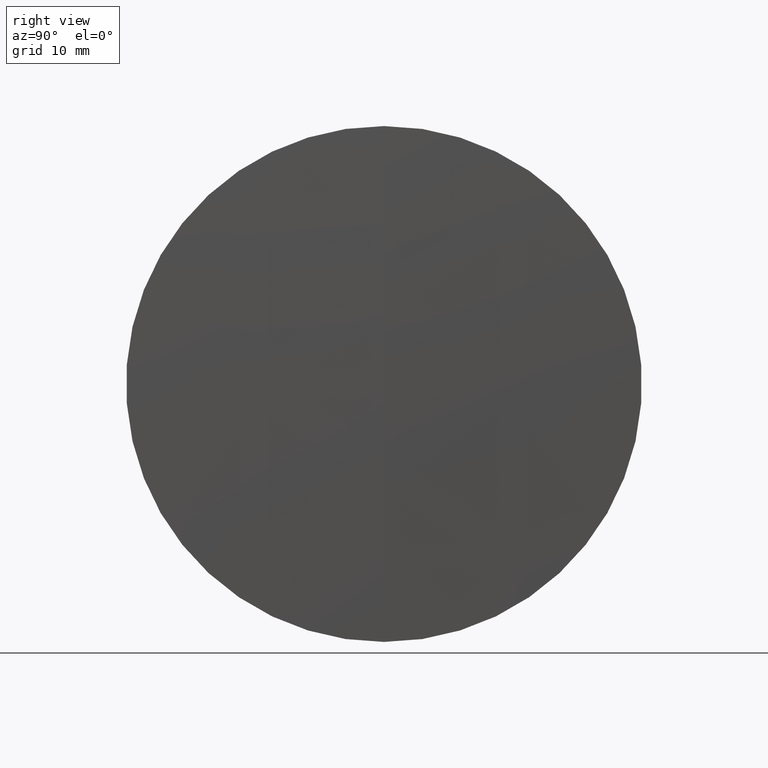
[diagram: clean part render]
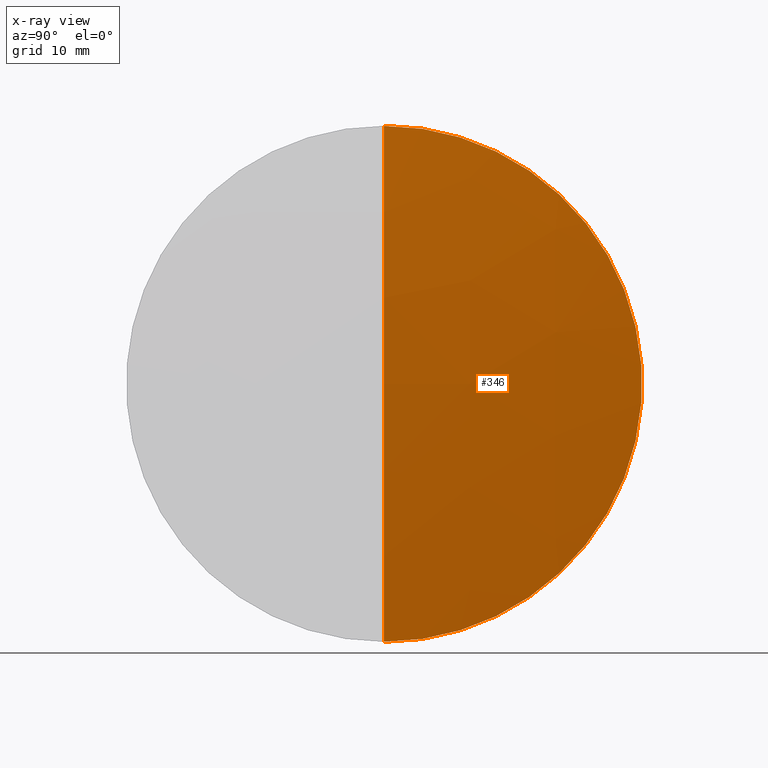
[diagram: x-ray — body ghosted, one internal face saturated and labeled with its STEP entity id]
A machine part, right view, then the same camera in x-ray: the body is ghosted and one INTERNAL B-rep face — a face not visible from any outside direction — is saturated and labeled: STEP entity #346.
In plain terms, the highlighted spherical surface has radius 255.333 mm.
Its self-contained STEP definition (entity closure, byte-faithful):
#15 = CARTESIAN_POINT ( 'NONE',  ( 293.6613078278429600, 3.061616997868389000E-015, -25.00000000000005000 ) ) ;
#19 = DIRECTION ( 'NONE',  ( 0.0000000000000000000, 0.0000000000000000000, -1.000000000000000000 ) ) ;
#44 = EDGE_CURVE ( 'NONE', #154, #258, #221, .T. ) ;
#46 = CARTESIAN_POINT ( 'NONE',  ( 293.6613078278429600, 0.0000000000000000000, 0.0000000000000000000 ) ) ;
#61 = DIRECTION ( 'NONE',  ( 0.0000000000000000000, -1.224646799147353200E-016, 1.000000000000000000 ) ) ;
#65 = AXIS2_PLACEMENT_3D ( 'NONE', #46, #163, #253 ) ;
#71 = CIRCLE ( 'NONE', #85, 255.3329999999999100 ) ;
#79 = CARTESIAN_POINT ( 'NONE',  ( 293.6613078278429600, 0.0000000000000000000, 25.00000000000005000 ) ) ;
#85 = AXIS2_PLACEMENT_3D ( 'NONE', #184, #198, #61 ) ;
#95 = CARTESIAN_POINT ( 'NONE',  ( 294.8881471606918000, 0.0000000000000000000, 3.450262694931332900E-013 ) ) ;
#105 = ORIENTED_EDGE ( 'NONE', *, *, #44, .F. ) ;
#121 = AXIS2_PLACEMENT_3D ( 'NONE', #193, #344, #19 ) ;
#138 = EDGE_LOOP ( 'NONE', ( #105, #145, #260 ) ) ;
#143 = DIRECTION ( 'NONE',  ( 0.0000000000000000000, 1.000000000000000000, 0.0000000000000000000 ) ) ;
#145 = ORIENTED_EDGE ( 'NONE', *, *, #170, .T. ) ;
#146 = EDGE_CURVE ( 'NONE', #258, #159, #249, .T. ) ;
#154 = VERTEX_POINT ( 'NONE', #95 ) ;
#159 = VERTEX_POINT ( 'NONE', #15 ) ;
#163 = DIRECTION ( 'NONE',  ( -1.000000000000000000, -0.0000000000000000000, -0.0000000000000000000 ) ) ;
#170 = EDGE_CURVE ( 'NONE', #154, #159, #71, .T. ) ;
#184 = CARTESIAN_POINT ( 'NONE',  ( 39.55514716069188800, 0.0000000000000000000, 3.293916324347987600E-013 ) ) ;
#191 = SPHERICAL_SURFACE ( 'NONE', #267, 255.3329999999999100 ) ;
#193 = CARTESIAN_POINT ( 'NONE',  ( 39.55514716069188800, 0.0000000000000000000, 3.293916324347987600E-013 ) ) ;
#198 = DIRECTION ( 'NONE',  ( -0.0000000000000000000, 1.000000000000000000, 1.224646799147353200E-016 ) ) ;
#221 = CIRCLE ( 'NONE', #121, 255.3329999999999100 ) ;
#223 = DIRECTION ( 'NONE',  ( 0.0000000000000000000, 0.0000000000000000000, 1.000000000000000000 ) ) ;
#249 = CIRCLE ( 'NONE', #65, 25.00000000000005000 ) ;
#253 = DIRECTION ( 'NONE',  ( 0.0000000000000000000, 0.0000000000000000000, 1.000000000000000000 ) ) ;
#258 = VERTEX_POINT ( 'NONE', #79 ) ;
#260 = ORIENTED_EDGE ( 'NONE', *, *, #146, .F. ) ;
#267 = AXIS2_PLACEMENT_3D ( 'NONE', #313, #143, #223 ) ;
#313 = CARTESIAN_POINT ( 'NONE',  ( 39.55514716069188800, 0.0000000000000000000, 3.293916324347987600E-013 ) ) ;
#319 = FACE_OUTER_BOUND ( 'NONE', #138, .T. ) ;
#344 = DIRECTION ( 'NONE',  ( 0.0000000000000000000, -1.000000000000000000, 0.0000000000000000000 ) ) ;
#346 = ADVANCED_FACE ( 'NONE', ( #319 ), #191, .T. ) ;